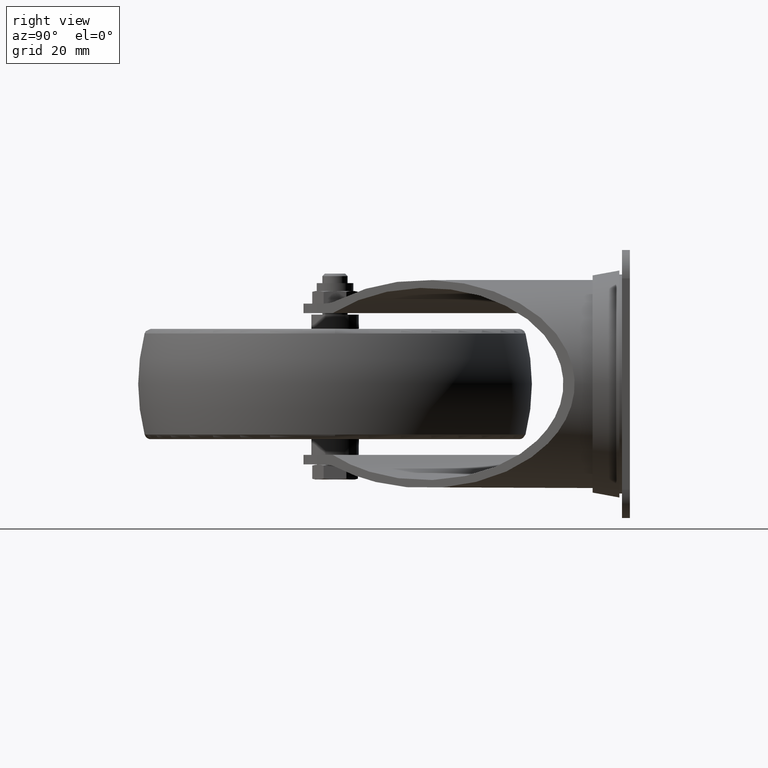
[diagram: clean part render]
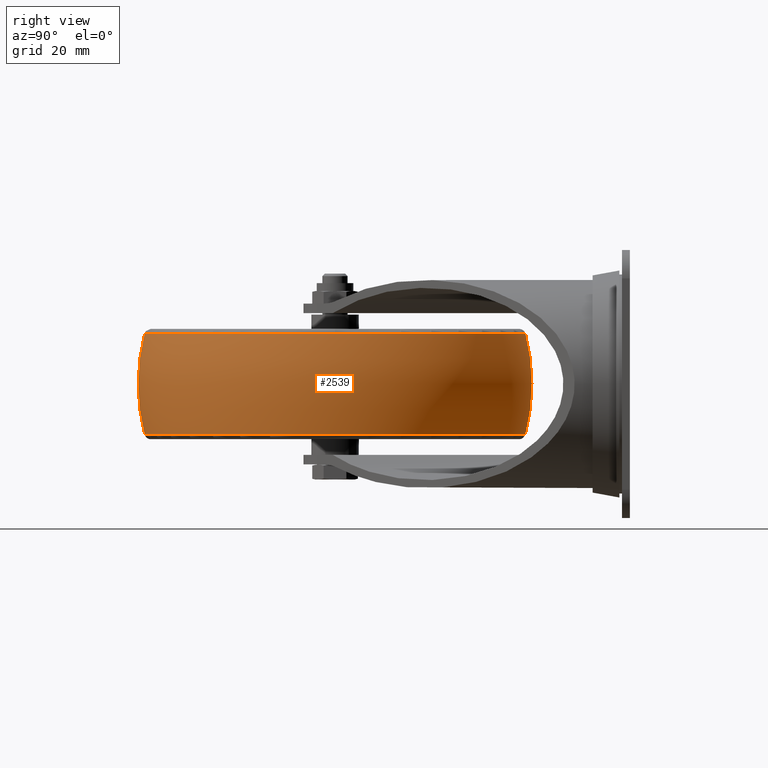
[diagram: same view with one face highlighted and labeled with its STEP entity id]
A machine part, right view. The second image highlights one B-rep face of the part: STEP entity #2539.
In plain terms, the highlighted spherical surface has radius 62.5 mm.
Its self-contained STEP definition (entity closure, byte-faithful):
#14=SPHERICAL_SURFACE('',#2870,62.5);
#322=FACE_OUTER_BOUND('',#493,.T.);
#493=EDGE_LOOP('',(#2165,#2166,#2167,#2168,#2169,#2170));
#664=CIRCLE('',#2868,60.4140145339399);
#665=CIRCLE('',#2869,60.4140145339399);
#666=CIRCLE('',#2871,60.4140145339399);
#667=CIRCLE('',#2872,60.4140145339399);
#668=CIRCLE('',#2873,62.5);
#1146=VERTEX_POINT('',#4656);
#1147=VERTEX_POINT('',#4658);
#1148=VERTEX_POINT('',#4662);
#1149=VERTEX_POINT('',#4663);
#1489=EDGE_CURVE('',#1146,#1147,#664,.T.);
#1490=EDGE_CURVE('',#1147,#1146,#665,.T.);
#1491=EDGE_CURVE('',#1148,#1149,#666,.T.);
#1492=EDGE_CURVE('',#1149,#1148,#667,.T.);
#1493=EDGE_CURVE('',#1148,#1147,#668,.T.);
#2165=ORIENTED_EDGE('',*,*,#1491,.T.);
#2166=ORIENTED_EDGE('',*,*,#1492,.T.);
#2167=ORIENTED_EDGE('',*,*,#1493,.T.);
#2168=ORIENTED_EDGE('',*,*,#1489,.F.);
#2169=ORIENTED_EDGE('',*,*,#1490,.F.);
#2170=ORIENTED_EDGE('',*,*,#1493,.F.);
#2539=ADVANCED_FACE('',(#322),#14,.T.);
#2868=AXIS2_PLACEMENT_3D('',#4659,#3606,#3607);
#2869=AXIS2_PLACEMENT_3D('',#4660,#3608,#3609);
#2870=AXIS2_PLACEMENT_3D('',#4661,#3610,#3611);
#2871=AXIS2_PLACEMENT_3D('',#4664,#3612,#3613);
#2872=AXIS2_PLACEMENT_3D('',#4665,#3614,#3615);
#2873=AXIS2_PLACEMENT_3D('',#4666,#3616,#3617);
#3606=DIRECTION('center_axis',(0.,0.,-1.));
#3607=DIRECTION('ref_axis',(1.,0.,0.));
#3608=DIRECTION('center_axis',(0.,0.,-1.));
#3609=DIRECTION('ref_axis',(1.,0.,0.));
#3610=DIRECTION('center_axis',(6.12323399573677E-17,0.,1.));
#3611=DIRECTION('ref_axis',(1.,0.,0.));
#3612=DIRECTION('center_axis',(0.,0.,-1.));
#3613=DIRECTION('ref_axis',(1.,0.,0.));
#3614=DIRECTION('center_axis',(0.,0.,-1.));
#3615=DIRECTION('ref_axis',(1.,0.,0.));
#3616=DIRECTION('center_axis',(1.22464679914735E-16,-1.,0.));
#3617=DIRECTION('ref_axis',(-1.,-1.22464679914735E-16,0.));
#4656=CARTESIAN_POINT('',(60.4140145339399,-1.4796677211636E-14,-16.0123966942149));
#4658=CARTESIAN_POINT('',(-60.4140145339399,-7.39858295226312E-15,-16.0123966942149));
#4659=CARTESIAN_POINT('Origin',(0.,0.,-16.0123966942149));
#4660=CARTESIAN_POINT('Origin',(0.,0.,-16.0123966942149));
#4661=CARTESIAN_POINT('Origin',(0.,0.,-2.8421709430404E-14));
#4662=CARTESIAN_POINT('',(-60.4140145339399,-7.39833860581802E-15,16.0123966942149));
#4663=CARTESIAN_POINT('',(60.4140145339399,-7.39858295226312E-15,16.0123966942149));
#4664=CARTESIAN_POINT('Origin',(0.,0.,16.0123966942149));
#4665=CARTESIAN_POINT('Origin',(0.,0.,16.0123966942149));
#4666=CARTESIAN_POINT('Origin',(0.,0.,-2.8421709430404E-14));